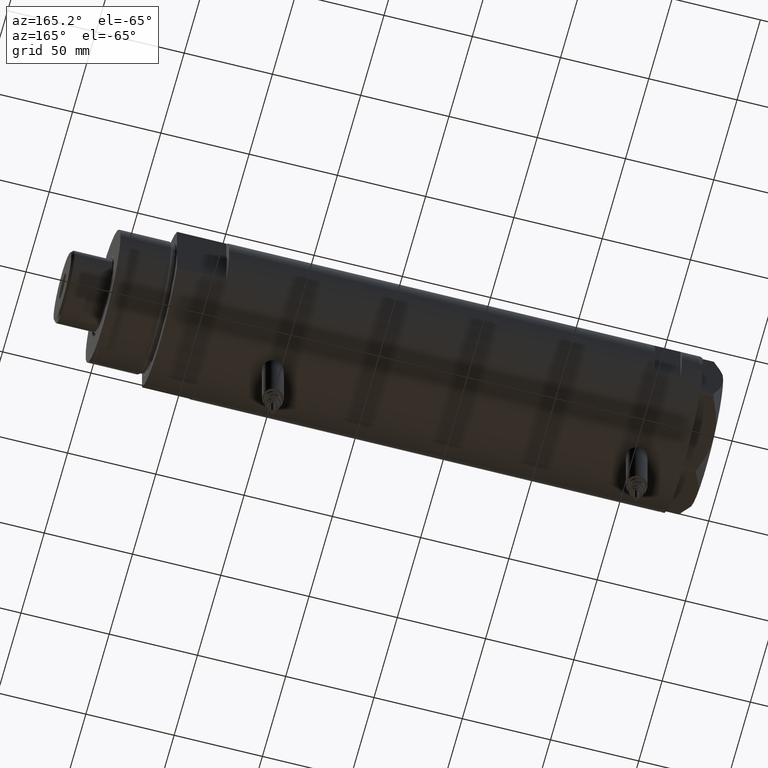
[diagram: clean part render]
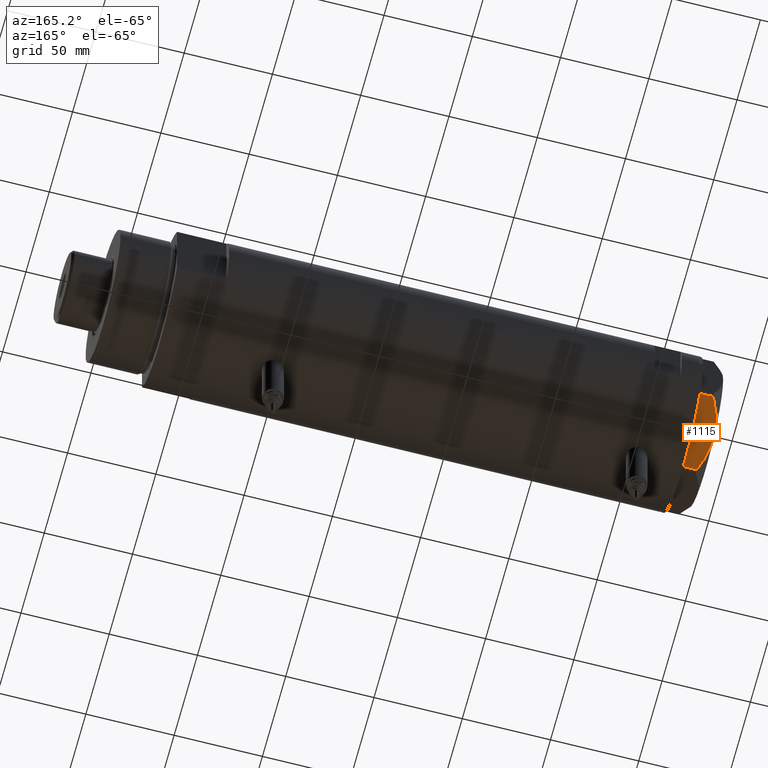
[diagram: same view with one face highlighted and labeled with its STEP entity id]
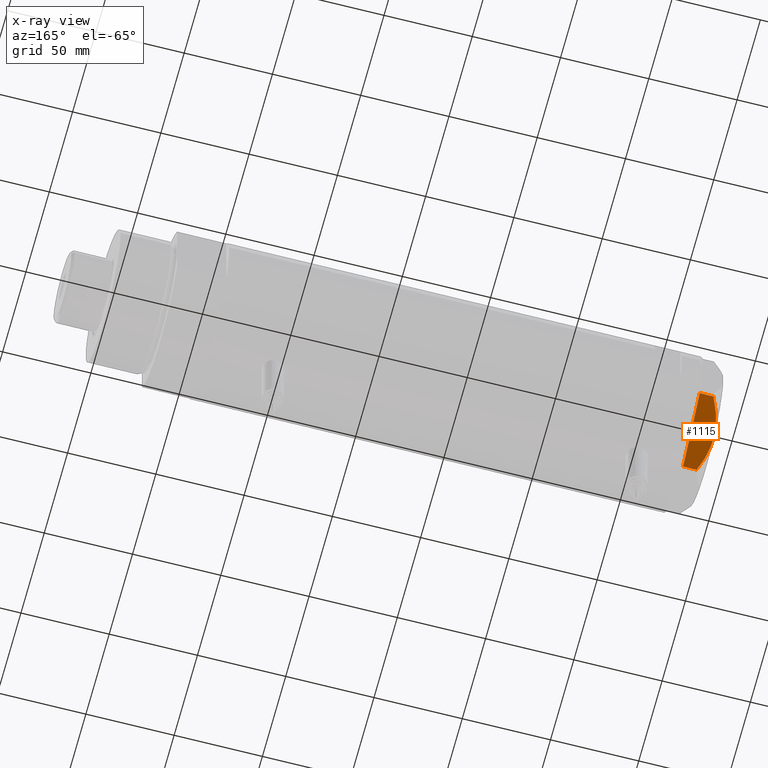
[diagram: x-ray of the same camera — body ghosted, the highlighted face saturated]
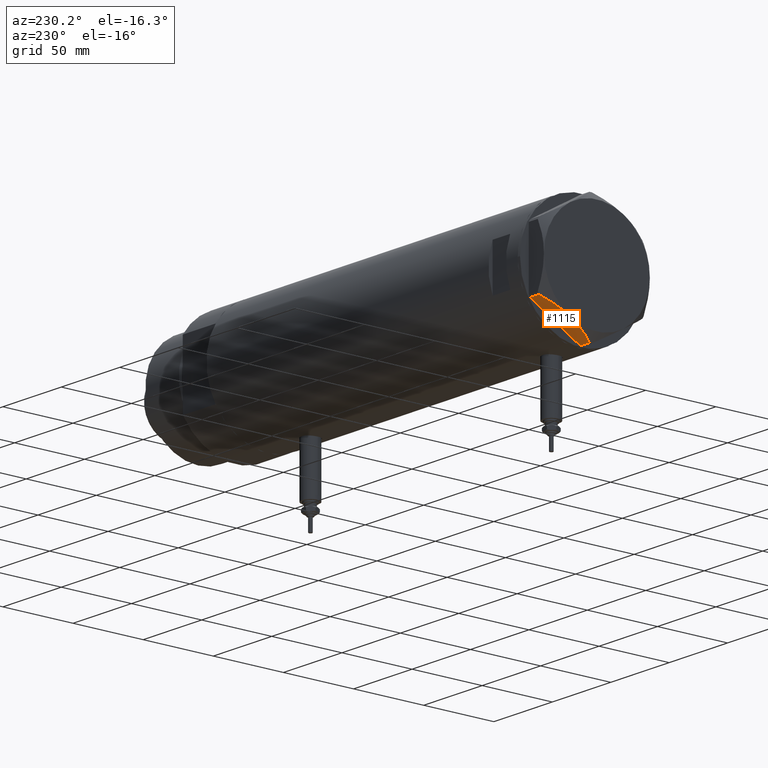
[diagram: same view with one face highlighted and labeled with its STEP entity id]
A machine part, auxiliary view. The second image highlights one B-rep face of the part: STEP entity #1115.
The next image is the same camera in x-ray: the body ghosted, the highlighted face saturated — about 0% of this face is hidden behind the body in this view.
A second angle (auxiliary view) of the same face is appended — the face is thin or edge-on in the first view.
In plain terms, the highlighted planar face has unit normal (0, -0.5, 0.866).
Its self-contained STEP definition (entity closure, byte-faithful):
#227 = ORIENTED_EDGE ( 'NONE', *, *, #845, .F. ) ;
#312 = CARTESIAN_POINT ( 'NONE',  ( 8.199247025945881617, 38.85610784623463587, 11.04644118613097170 ) ) ;
#531 = VERTEX_POINT ( 'NONE', #4892 ) ;
#582 = CARTESIAN_POINT ( 'NONE',  ( 18.87500000000000000, 32.69245899286255508, 13.00000000000000000 ) ) ;
#771 = CARTESIAN_POINT ( 'NONE',  ( 36.78005154776156616, 22.35497266190829180, 7.709124142616896158 ) ) ;
#802 = CARTESIAN_POINT ( 'NONE',  ( 6.717640657182761821, 39.71151368207312515, 10.48240969891332064 ) ) ;
#845 = EDGE_CURVE ( 'NONE', #4074, #1161, #4087, .T. ) ;
#1007 = CARTESIAN_POINT ( 'NONE',  ( 19.65653997226999294, 32.24123667949002936, 13.00000000000000355 ) ) ;
#1115 = ADVANCED_FACE ( 'NONE', ( #2182 ), #1837, .F. ) ;
#1161 = VERTEX_POINT ( 'NONE', #4317 ) ;
#1346 = CARTESIAN_POINT ( 'NONE',  ( 18.87500000000000000, 32.69245899286255508, 13.00000000000000000 ) ) ;
#1426 = ORIENTED_EDGE ( 'NONE', *, *, #1576, .F. ) ;
#1576 = EDGE_CURVE ( 'NONE', #1161, #1685, #3429, .T. ) ;
#1685 = VERTEX_POINT ( 'NONE', #4702 ) ;
#1837 = PLANE ( 'NONE',  #4406 ) ;
#1890 = CARTESIAN_POINT ( 'NONE',  ( 0.9699484522410141141, 43.02994532381532622, 7.709124142618329678 ) ) ;
#2004 = CARTESIAN_POINT ( 'NONE',  ( 20.44120046918717293, 31.78821273037242534, 12.96759879420492290 ) ) ;
#2028 = CARTESIAN_POINT ( 'NONE',  ( 36.78005154776142405, 22.35497266190837706, 0.000000000000000000 ) ) ;
#2133 = CARTESIAN_POINT ( 'NONE',  ( 15.78316139395979611, 34.47753284435075471, 12.87183830165163556 ) ) ;
#2182 = FACE_OUTER_BOUND ( 'NONE', #2834, .T. ) ;
#2314 = VERTEX_POINT ( 'NONE', #2028 ) ;
#2318 = EDGE_CURVE ( 'NONE', #531, #1685, #5232, .T. ) ;
#2370 = EDGE_CURVE ( 'NONE', #4074, #2314, #2958, .T. ) ;
#2480 = EDGE_CURVE ( 'NONE', #2314, #531, #4476, .T. ) ;
#2502 = CARTESIAN_POINT ( 'NONE',  ( 36.78005154776156616, 22.35497266190829180, 7.709124142616896158 ) ) ;
#2504 = CARTESIAN_POINT ( 'NONE',  ( 36.78005154776142405, 22.35497266190837706, 13.00000000000000000 ) ) ;
#2628 = CARTESIAN_POINT ( 'NONE',  ( 17.32290914057161046, 33.58855906836029703, 12.99999999999999822 ) ) ;
#2662 = CARTESIAN_POINT ( 'NONE',  ( 5.984301592052704066, 40.13490718873321583, 10.17879673963510001 ) ) ;
#2834 = EDGE_LOOP ( 'NONE', ( #227, #4558, #3868, #4692, #1426 ) ) ;
#2958 = LINE ( 'NONE', #2504, #3054 ) ;
#2989 = CARTESIAN_POINT ( 'NONE',  ( 0.9699484522385712904, 43.02994532381674020, 13.00000000000000000 ) ) ;
#3054 = VECTOR ( 'NONE', #3437, 1000.000000000000000 ) ;
#3089 = CARTESIAN_POINT ( 'NONE',  ( 11.20965750620489843, 37.11804654508583212, 12.01242981158388723 ) ) ;
#3429 = B_SPLINE_CURVE_WITH_KNOTS ( 'NONE', 3,
 ( #1346, #2628, #2133, #5384, #3089, #4491, #312, #802, #2662, #4277, #5178, #1890 ),
 .UNSPECIFIED., .F., .F.,
 ( 4, 2, 2, 2, 2, 4 ),
 ( 0.02259271946349905927, 0.02789559809390696268, 0.03319847672431486263, 0.03584991603951881434, 0.03850135535472275911, 0.04380423398513066252 ),
 .UNSPECIFIED. ) ;
#3435 = CARTESIAN_POINT ( 'NONE',  ( 22.79667224021352112, 30.42828046930179298, 12.73960743196720458 ) ) ;
#3437 = DIRECTION ( 'NONE',  ( 0.000000000000000000, 0.000000000000000000, -1.000000000000000000 ) ) ;
#3463 = CARTESIAN_POINT ( 'NONE',  ( 25.11263918036255305, 29.09115633297248849, 12.35956205105863859 ) ) ;
#3554 = DIRECTION ( 'NONE',  ( -0.8660254037844385966, 0.5000000000000000000, 0.000000000000000000 ) ) ;
#3833 = DIRECTION ( 'NONE',  ( 0.000000000000000000, 0.000000000000000000, 1.000000000000000000 ) ) ;
#3868 = ORIENTED_EDGE ( 'NONE', *, *, #2480, .T. ) ;
#4005 = DIRECTION ( 'NONE',  ( -0.5000000000000000000, -0.8660254037844387076, 0.000000000000000000 ) ) ;
#4074 = VERTEX_POINT ( 'NONE', #771 ) ;
#4087 = B_SPLINE_CURVE_WITH_KNOTS ( 'NONE', 3,
 ( #2502, #5725, #4295, #4271, #3463, #3435, #4783, #2004, #1007, #582 ),
 .UNSPECIFIED., .F., .F.,
 ( 4, 2, 2, 2, 4 ),
 ( 0.001231023567492484571, 0.01191187151549577897, 0.01725229548949741912, 0.01992250747649823919, 0.02259271946349905927 ),
 .UNSPECIFIED. ) ;
#4271 = CARTESIAN_POINT ( 'NONE',  ( 26.62598697109948631, 28.21742457861299158, 11.98878493998158490 ) ) ;
#4277 = CARTESIAN_POINT ( 'NONE',  ( 3.804046002726260589, 41.39367834013302883, 9.210778219601426287 ) ) ;
#4295 = CARTESIAN_POINT ( 'NONE',  ( 31.09047021924040877, 25.63985397350625206, 10.58681170757598800 ) ) ;
#4317 = CARTESIAN_POINT ( 'NONE',  ( 18.87500000000000000, 32.69245899286255508, 13.00000000000000000 ) ) ;
#4406 = AXIS2_PLACEMENT_3D ( 'NONE', #5334, #4005, #5848 ) ;
#4476 = LINE ( 'NONE', #5397, #5361 ) ;
#4491 = CARTESIAN_POINT ( 'NONE',  ( 8.949419886524690781, 38.42299534324072141, 11.30742055474510366 ) ) ;
#4558 = ORIENTED_EDGE ( 'NONE', *, *, #2370, .T. ) ;
#4692 = ORIENTED_EDGE ( 'NONE', *, *, #2318, .T. ) ;
#4702 = CARTESIAN_POINT ( 'NONE',  ( 0.9699484522410141141, 43.02994532381532622, 7.709124142618329678 ) ) ;
#4783 = CARTESIAN_POINT ( 'NONE',  ( 22.01686507582220642, 30.87850234557911833, 12.83692902789790224 ) ) ;
#4892 = CARTESIAN_POINT ( 'NONE',  ( 0.9699484522385850571, 43.02994532381674020, 0.000000000000000000 ) ) ;
#5084 = VECTOR ( 'NONE', #3833, 1000.000000000000000 ) ;
#5178 = CARTESIAN_POINT ( 'NONE',  ( 2.376799045725944914, 42.21769975495722349, 8.489459328479338041 ) ) ;
#5232 = LINE ( 'NONE', #2989, #5084 ) ;
#5334 = CARTESIAN_POINT ( 'NONE',  ( 37.75000000000000000, 21.79497266190837124, 13.00000000000000000 ) ) ;
#5361 = VECTOR ( 'NONE', #3554, 1000.000000000000227 ) ;
#5384 = CARTESIAN_POINT ( 'NONE',  ( 12.72654504259190666, 36.24227111762240128, 12.37795492145974308 ) ) ;
#5397 = CARTESIAN_POINT ( 'NONE',  ( 37.75000000000000000, 21.79497266190837124, 0.000000000000000000 ) ) ;
#5725 = CARTESIAN_POINT ( 'NONE',  ( 33.96695484073207894, 23.97911480296822262, 9.269459228581801824 ) ) ;
#5848 = DIRECTION ( 'NONE',  ( 0.8660254037844385966, -0.4999999999999999445, 0.000000000000000000 ) ) ;